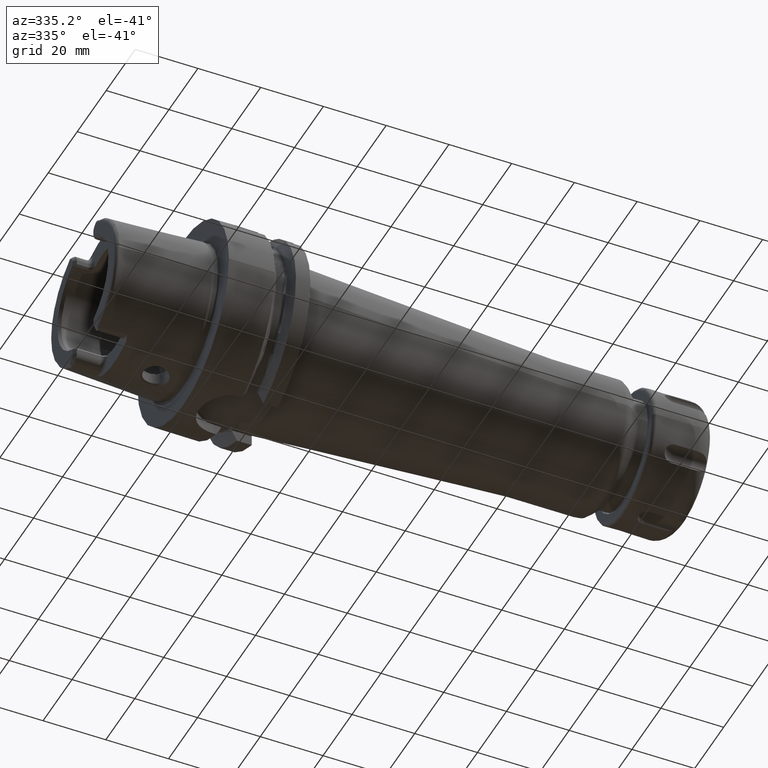
[diagram: clean part render]
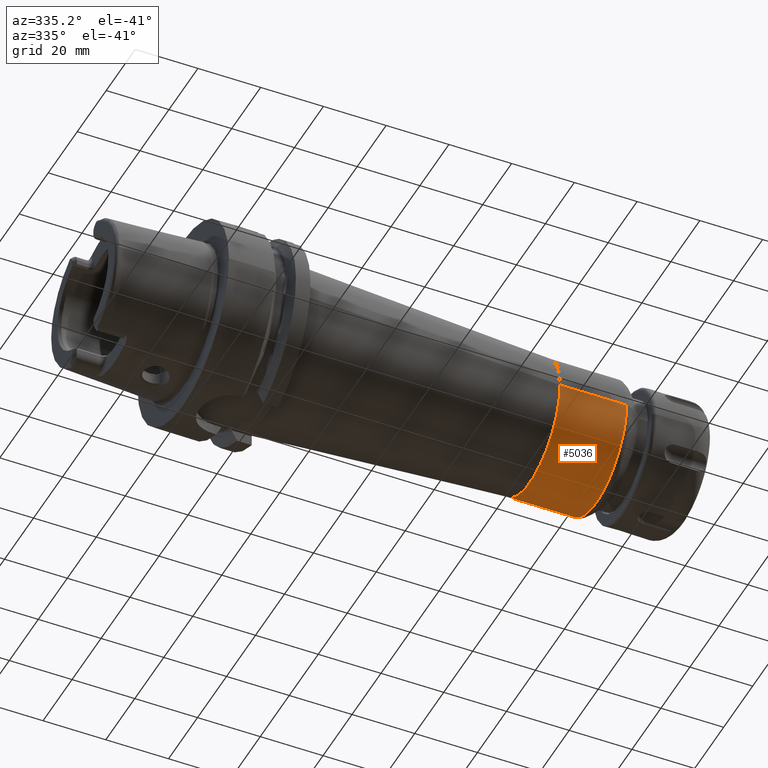
[diagram: same view with one face highlighted and labeled with its STEP entity id]
A machine part, auxiliary view. The second image highlights one B-rep face of the part: STEP entity #5036.
In plain terms, the highlighted cylindrical surface (partial cylindrical patch) has radius 21 mm, axis along (1, 0, 0).
Its self-contained STEP definition (entity closure, byte-faithful):
#1649=CARTESIAN_POINT('',(1.316373593129E2,0.E0,0.E0));
#1650=DIRECTION('',(-1.E0,0.E0,0.E0));
#1651=DIRECTION('',(0.E0,1.E0,0.E0));
#1652=AXIS2_PLACEMENT_3D('',#1649,#1650,#1651);
#1654=DIRECTION('',(-1.E0,0.E0,0.E0));
#1655=VECTOR('',#1654,2.122890136571E1);
#1656=CARTESIAN_POINT('',(1.316373593129E2,2.1E1,-1.573407049512E-13));
#1657=LINE('',#1656,#1655);
#1658=CARTESIAN_POINT('',(1.104084579472E2,0.E0,0.E0));
#1659=DIRECTION('',(1.E0,0.E0,0.E0));
#1660=DIRECTION('',(0.E0,-1.E0,0.E0));
#1661=AXIS2_PLACEMENT_3D('',#1658,#1659,#1660);
#1663=DIRECTION('',(-1.E0,0.E0,0.E0));
#1664=VECTOR('',#1663,2.122890136571E1);
#1665=CARTESIAN_POINT('',(1.316373593129E2,-2.1E1,1.566155253579E-13));
#1666=LINE('',#1665,#1664);
#3247=CARTESIAN_POINT('',(1.104084579472E2,-2.1E1,0.E0));
#3248=CARTESIAN_POINT('',(1.104084579472E2,2.1E1,0.E0));
#3249=VERTEX_POINT('',#3247);
#3250=VERTEX_POINT('',#3248);
#3259=CARTESIAN_POINT('',(1.316373593129E2,2.1E1,0.E0));
#3260=CARTESIAN_POINT('',(1.316373593129E2,-2.1E1,0.E0));
#3261=VERTEX_POINT('',#3259);
#3262=VERTEX_POINT('',#3260);
#5022=CARTESIAN_POINT('',(1.9681E1,0.E0,0.E0));
#5023=DIRECTION('',(1.E0,0.E0,0.E0));
#5024=DIRECTION('',(0.E0,-1.E0,0.E0));
#5025=AXIS2_PLACEMENT_3D('',#5022,#5023,#5024);
#5026=CYLINDRICAL_SURFACE('',#5025,2.1E1);
#5028=ORIENTED_EDGE('',*,*,#5027,.F.);
#5030=ORIENTED_EDGE('',*,*,#5029,.T.);
#5031=ORIENTED_EDGE('',*,*,#5016,.F.);
#5033=ORIENTED_EDGE('',*,*,#5032,.F.);
#5034=EDGE_LOOP('',(#5028,#5030,#5031,#5033));
#5035=FACE_OUTER_BOUND('',#5034,.F.);
#5036=ADVANCED_FACE('',(#5035),#5026,.T.);
#1653=CIRCLE('',#1652,2.1E1);
#1662=CIRCLE('',#1661,2.1E1);
#5016=EDGE_CURVE('',#3249,#3250,#1662,.T.);
#5027=EDGE_CURVE('',#3261,#3262,#1653,.T.);
#5029=EDGE_CURVE('',#3261,#3250,#1657,.T.);
#5032=EDGE_CURVE('',#3262,#3249,#1666,.T.);